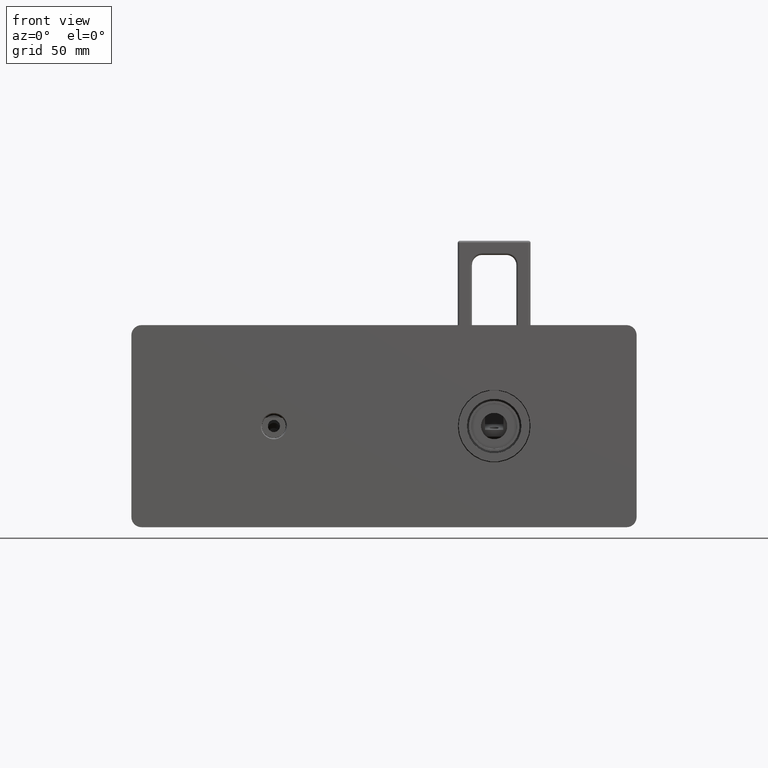
[diagram: clean part render]
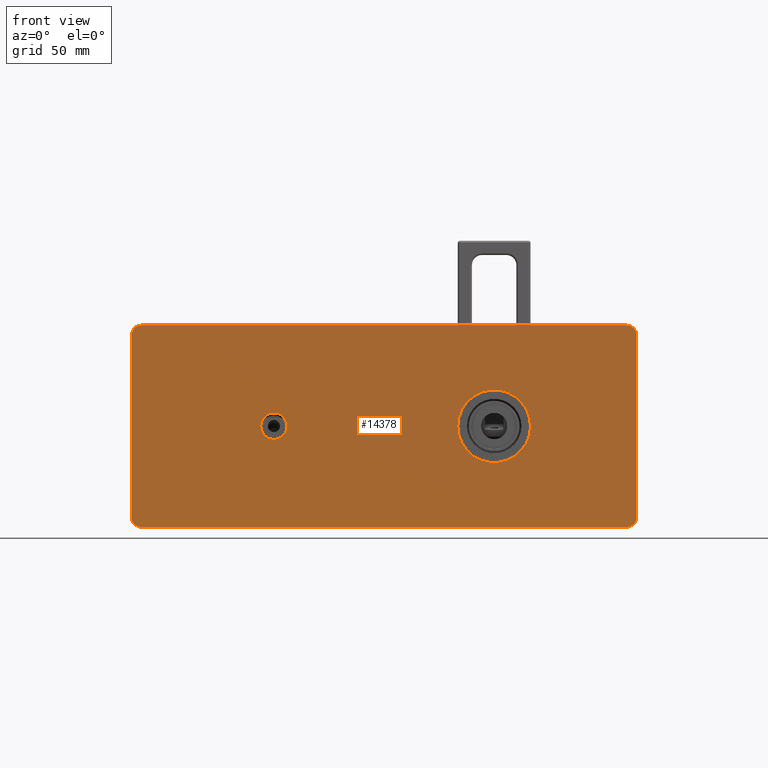
[diagram: same view with one face highlighted and labeled with its STEP entity id]
A machine part, front view. The second image highlights one B-rep face of the part: STEP entity #14378.
In plain terms, the highlighted planar face has unit normal (0, 1, 0).
Its self-contained STEP definition (entity closure, byte-faithful):
#12489=CARTESIAN_POINT('',(1.745E2,5.1E1,-4.5E1));
#12490=DIRECTION('',(0.E0,-1.E0,0.E0));
#12491=DIRECTION('',(0.E0,0.E0,-1.E0));
#12492=AXIS2_PLACEMENT_3D('',#12489,#12490,#12491);
#12494=DIRECTION('',(-1.E0,0.E0,0.E0));
#12495=VECTOR('',#12494,2.4E2);
#12496=CARTESIAN_POINT('',(1.745E2,5.1E1,-5.E1));
#12497=LINE('',#12496,#12495);
#12498=CARTESIAN_POINT('',(-6.55E1,5.1E1,-4.5E1));
#12499=DIRECTION('',(0.E0,-1.E0,0.E0));
#12500=DIRECTION('',(-1.E0,0.E0,0.E0));
#12501=AXIS2_PLACEMENT_3D('',#12498,#12499,#12500);
#12503=DIRECTION('',(0.E0,0.E0,1.E0));
#12504=VECTOR('',#12503,9.E1);
#12505=CARTESIAN_POINT('',(-7.05E1,5.1E1,-4.5E1));
#12506=LINE('',#12505,#12504);
#12507=CARTESIAN_POINT('',(-6.55E1,5.1E1,4.5E1));
#12508=DIRECTION('',(0.E0,-1.E0,0.E0));
#12509=DIRECTION('',(0.E0,0.E0,1.E0));
#12510=AXIS2_PLACEMENT_3D('',#12507,#12508,#12509);
#12512=DIRECTION('',(1.E0,0.E0,0.E0));
#12513=VECTOR('',#12512,2.4E2);
#12514=CARTESIAN_POINT('',(-6.55E1,5.1E1,5.E1));
#12515=LINE('',#12514,#12513);
#12516=CARTESIAN_POINT('',(1.745E2,5.1E1,4.5E1));
#12517=DIRECTION('',(0.E0,-1.E0,0.E0));
#12518=DIRECTION('',(1.E0,0.E0,0.E0));
#12519=AXIS2_PLACEMENT_3D('',#12516,#12517,#12518);
#12521=DIRECTION('',(0.E0,0.E0,-1.E0));
#12522=VECTOR('',#12521,9.E1);
#12523=CARTESIAN_POINT('',(1.795E2,5.1E1,4.5E1));
#12524=LINE('',#12523,#12522);
#12525=CARTESIAN_POINT('',(0.E0,5.1E1,0.E0));
#12526=DIRECTION('',(0.E0,-1.E0,0.E0));
#12527=DIRECTION('',(1.E0,0.E0,0.E0));
#12528=AXIS2_PLACEMENT_3D('',#12525,#12526,#12527);
#12530=CARTESIAN_POINT('',(0.E0,5.1E1,0.E0));
#12531=DIRECTION('',(0.E0,-1.E0,0.E0));
#12532=DIRECTION('',(-1.E0,0.E0,0.E0));
#12533=AXIS2_PLACEMENT_3D('',#12530,#12531,#12532);
#12535=CARTESIAN_POINT('',(1.09E2,5.1E1,1.206277097160E-14));
#12536=DIRECTION('',(0.E0,-1.E0,0.E0));
#12537=DIRECTION('',(1.E0,0.E0,0.E0));
#12538=AXIS2_PLACEMENT_3D('',#12535,#12536,#12537);
#12540=CARTESIAN_POINT('',(1.09E2,5.1E1,1.206277097160E-14));
#12541=DIRECTION('',(0.E0,-1.E0,0.E0));
#12542=DIRECTION('',(-1.E0,0.E0,0.E0));
#12543=AXIS2_PLACEMENT_3D('',#12540,#12541,#12542);
#13948=CARTESIAN_POINT('',(1.27E2,5.1E1,1.422668815982E-14));
#13949=CARTESIAN_POINT('',(9.1E1,5.1E1,1.210321802185E-14));
#13950=VERTEX_POINT('',#13948);
#13951=VERTEX_POINT('',#13949);
#13956=CARTESIAN_POINT('',(1.745E2,5.1E1,-5.E1));
#13957=CARTESIAN_POINT('',(1.795E2,5.1E1,-4.5E1));
#13958=VERTEX_POINT('',#13956);
#13959=VERTEX_POINT('',#13957);
#13964=CARTESIAN_POINT('',(-7.05E1,5.1E1,-4.5E1));
#13965=CARTESIAN_POINT('',(-6.55E1,5.1E1,-5.E1));
#13966=VERTEX_POINT('',#13964);
#13967=VERTEX_POINT('',#13965);
#13972=CARTESIAN_POINT('',(-6.55E1,5.1E1,5.E1));
#13973=CARTESIAN_POINT('',(-7.05E1,5.1E1,4.5E1));
#13974=VERTEX_POINT('',#13972);
#13975=VERTEX_POINT('',#13973);
#13980=CARTESIAN_POINT('',(1.795E2,5.1E1,4.5E1));
#13981=CARTESIAN_POINT('',(1.745E2,5.1E1,5.E1));
#13982=VERTEX_POINT('',#13980);
#13983=VERTEX_POINT('',#13981);
#13988=CARTESIAN_POINT('',(6.5E0,5.1E1,0.E0));
#13989=CARTESIAN_POINT('',(-6.5E0,5.1E1,0.E0));
#13990=VERTEX_POINT('',#13988);
#13991=VERTEX_POINT('',#13989);
#14344=CARTESIAN_POINT('',(1.09E2,5.1E1,0.E0));
#14345=DIRECTION('',(0.E0,1.E0,0.E0));
#14346=DIRECTION('',(1.E0,0.E0,0.E0));
#14347=AXIS2_PLACEMENT_3D('',#14344,#14345,#14346);
#14348=PLANE('',#14347);
#14349=ORIENTED_EDGE('',*,*,#14327,.F.);
#14351=ORIENTED_EDGE('',*,*,#14350,.T.);
#14353=ORIENTED_EDGE('',*,*,#14352,.F.);
#14355=ORIENTED_EDGE('',*,*,#14354,.T.);
#14357=ORIENTED_EDGE('',*,*,#14356,.F.);
#14359=ORIENTED_EDGE('',*,*,#14358,.T.);
#14361=ORIENTED_EDGE('',*,*,#14360,.F.);
#14363=ORIENTED_EDGE('',*,*,#14362,.T.);
#14364=EDGE_LOOP('',(#14349,#14351,#14353,#14355,#14357,#14359,#14361,#14363));
#14365=FACE_OUTER_BOUND('',#14364,.F.);
#14367=ORIENTED_EDGE('',*,*,#14366,.T.);
#14369=ORIENTED_EDGE('',*,*,#14368,.T.);
#14370=EDGE_LOOP('',(#14367,#14369));
#14371=FACE_BOUND('',#14370,.F.);
#14373=ORIENTED_EDGE('',*,*,#14372,.T.);
#14375=ORIENTED_EDGE('',*,*,#14374,.T.);
#14376=EDGE_LOOP('',(#14373,#14375));
#14377=FACE_BOUND('',#14376,.F.);
#14378=ADVANCED_FACE('',(#14365,#14371,#14377),#14348,.F.);
#12493=CIRCLE('',#12492,5.E0);
#12502=CIRCLE('',#12501,5.E0);
#12511=CIRCLE('',#12510,5.E0);
#12520=CIRCLE('',#12519,5.E0);
#12529=CIRCLE('',#12528,6.5E0);
#12534=CIRCLE('',#12533,6.5E0);
#12539=CIRCLE('',#12538,1.8E1);
#12544=CIRCLE('',#12543,1.8E1);
#14327=EDGE_CURVE('',#13958,#13959,#12493,.T.);
#14350=EDGE_CURVE('',#13958,#13967,#12497,.T.);
#14352=EDGE_CURVE('',#13966,#13967,#12502,.T.);
#14354=EDGE_CURVE('',#13966,#13975,#12506,.T.);
#14356=EDGE_CURVE('',#13974,#13975,#12511,.T.);
#14358=EDGE_CURVE('',#13974,#13983,#12515,.T.);
#14360=EDGE_CURVE('',#13982,#13983,#12520,.T.);
#14362=EDGE_CURVE('',#13982,#13959,#12524,.T.);
#14366=EDGE_CURVE('',#13990,#13991,#12529,.T.);
#14368=EDGE_CURVE('',#13991,#13990,#12534,.T.);
#14372=EDGE_CURVE('',#13950,#13951,#12539,.T.);
#14374=EDGE_CURVE('',#13951,#13950,#12544,.T.);